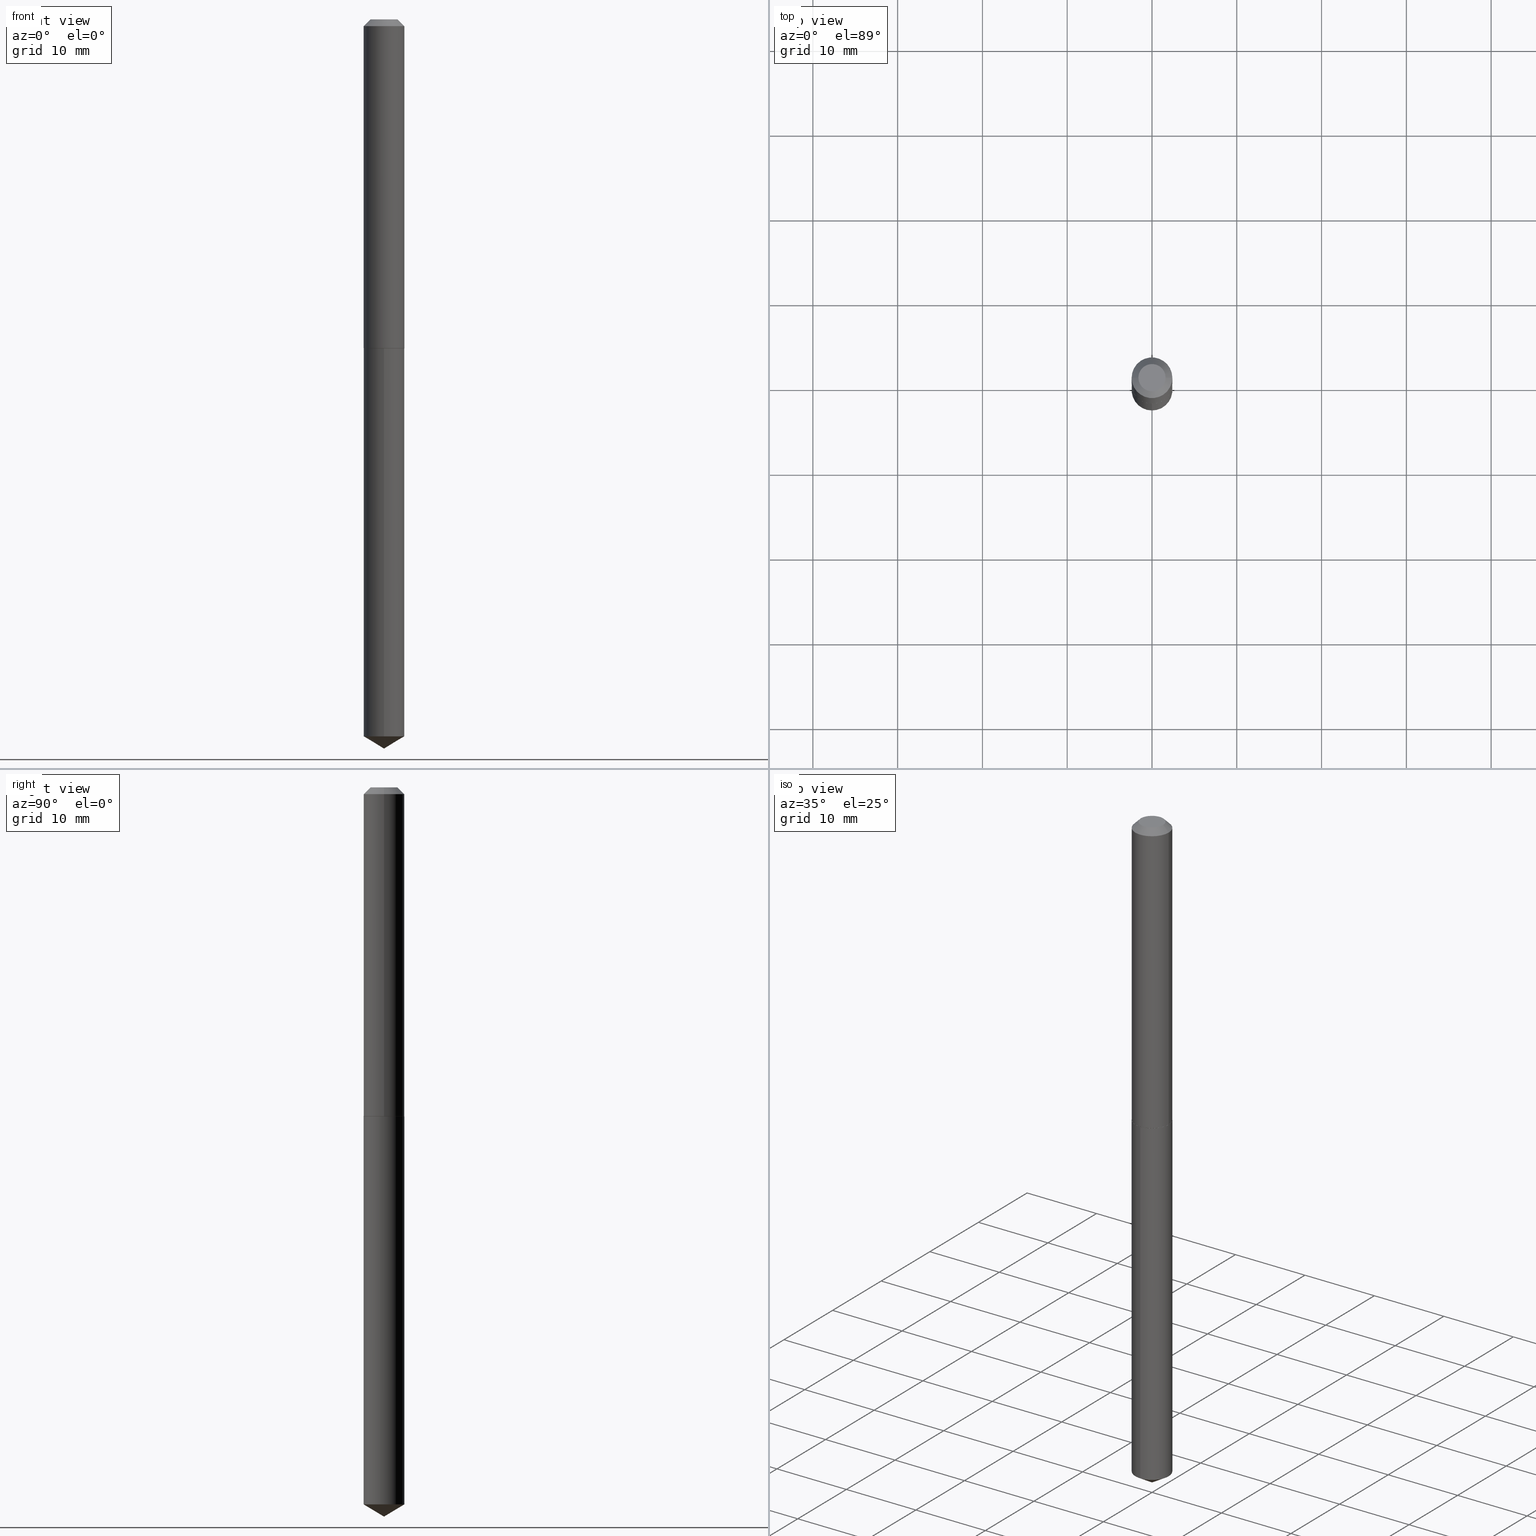
[diagram: canonical four-view strip — front | top / right | iso, engineering-drawing reading convention]
A machine part, canonical four-view strip (front | top / right | iso — engineering-drawing reading convention). The complete STEP part file that produces these views, byte-faithful:
ISO-10303-21;
HEADER;
FILE_DESCRIPTION (( 'STEP AP203' ),
    '1' );
FILE_NAME ('68324.STEP',
    '2024-04-23T13:05:56',
    ( '' ),
    ( '' ),
    'SwSTEP 2.0',
    'SolidWorks 2023',
    '' );
FILE_SCHEMA (( 'CONFIG_CONTROL_DESIGN' ));
ENDSEC;

DATA;
#1 = ORIENTED_EDGE ( 'NONE', *, *, #146, .F. ) ;
#2 = CALENDAR_DATE ( 2024, 23, 4 ) ;
#3 = CARTESIAN_POINT ( 'NONE',  ( -0.09450000000000019496, -4.660378267254071948E-15, -1.527100000000000124 ) ) ;
#4 = CC_DESIGN_APPROVAL ( #16, ( #311 ) ) ;
#5 = EDGE_CURVE ( 'NONE', #169, #362, #150, .T. ) ;
#6 = CARTESIAN_POINT ( 'NONE',  ( -6.598899730412707621E-16, -0.09450000000001163025, -3.329018671501895899 ) ) ;
#7 = DIRECTION ( 'NONE',  ( -5.985567269335961790E-15, -0.8571673007021131108, 0.5150380749100526012 ) ) ;
#8 = DIRECTION ( 'NONE',  ( 1.000000000000000000, -6.982962677686267499E-15, 4.876160269169049654E-29 ) ) ;
#9 = CARTESIAN_POINT ( 'NONE',  ( -2.994835545909309644E-48, 4.275831445896949513E-34, 1.224646799147346403E-19 ) ) ;
#10 = VECTOR ( 'NONE', #284, 39.37007874015748143 ) ;
#11 = DESIGN_CONTEXT ( 'detailed design', #35, 'design' ) ;
#12 = DIRECTION ( 'NONE',  ( 1.000000000000000000, -6.982962677686267499E-15, 4.876160269169049654E-29 ) ) ;
#13 = EDGE_LOOP ( 'NONE', ( #291, #372, #292, #43 ) ) ;
#14 = ORIENTED_EDGE ( 'NONE', *, *, #132, .T. ) ;
#15 = CLOSED_SHELL ( 'NONE', ( #154, #368, #82, #331, #274, #234, #191, #175 ) ) ;
#16 = APPROVAL ( #383, 'UNSPECIFIED' ) ;
#17 = EDGE_CURVE ( 'NONE', #205, #374, #71, .T. ) ;
#18 = MANIFOLD_SOLID_BREP ( 'Body-Move/Copy2[1]', #242 ) ;
#19 = VECTOR ( 'NONE', #41, 39.37007874015748143 ) ;
#20 = VERTEX_POINT ( 'NONE', #366 ) ;
#21 = DIRECTION ( 'NONE',  ( 1.000000000000000000, -6.982962677686266711E-15, 4.876176775795935793E-29 ) ) ;
#22 = CC_DESIGN_PERSON_AND_ORGANIZATION_ASSIGNMENT ( #220, #354, ( #311 ) ) ;
#23 = VERTEX_POINT ( 'NONE', #6 ) ;
#24 = AXIS2_PLACEMENT_3D ( 'NONE', #327, #61, #21 ) ;
#25 = PRODUCT_RELATED_PRODUCT_CATEGORY ( 'detail', '', ( #197 ) ) ;
#26 = EDGE_LOOP ( 'NONE', ( #261, #356 ) ) ;
#27 = COORDINATED_UNIVERSAL_TIME_OFFSET ( 5, 0, .BEHIND. ) ;
#28 = APPROVAL ( #158, 'UNSPECIFIED' ) ;
#29 = CARTESIAN_POINT ( 'NONE',  ( -0.09450000000000019496, -4.660378267254071948E-15, -1.527100000000000124 ) ) ;
#30 = ADVANCED_FACE ( 'NONE', ( #201 ), #256, .T. ) ;
#31 = EDGE_CURVE ( 'NONE', #362, #20, #269, .T. ) ;
#32 = PERSON ( 'UNSPECIFIED', 'UNSPECIFIED', 'UNSPECIFIED', ('UNSPECIFIED'), ('UNSPECIFIED'), ('UNSPECIFIED') ) ;
#33 = CARTESIAN_POINT ( 'NONE',  ( 6.714628852933318555E-16, 0.09449999999999467160, -1.527600000000000291 ) ) ;
#34 = AXIS2_PLACEMENT_3D ( 'NONE', #120, #271, #380 ) ;
#35 = APPLICATION_CONTEXT ( 'configuration controlled 3d designs of mechanical parts and assemblies' ) ;
#36 = LINE ( 'NONE', #33, #173 ) ;
#37 = CARTESIAN_POINT ( 'NONE',  ( -8.799765488636615236E-28, 1.256395493983816557E-13, 35.98427874015747818 ) ) ;
#38 = VERTEX_POINT ( 'NONE', #244 ) ;
#39 = CONICAL_SURFACE ( 'NONE', #364, 0.09449999999999998679, 0.7853981633974449483 ) ;
#40 = DIRECTION ( 'NONE',  ( 1.000000000000000000, -6.982962677686272233E-15, 0.000000000000000000 ) ) ;
#41 = DIRECTION ( 'NONE',  ( -0.7071067811865451302, 2.468850131082231817E-15, -0.7071067811865499042 ) ) ;
#42 = DIRECTION ( 'NONE',  ( 6.982962677686265922E-15, 1.000000000000000000, -3.491510974399375143E-15 ) ) ;
#43 = ORIENTED_EDGE ( 'NONE', *, *, #313, .T. ) ;
#44 = VERTEX_POINT ( 'NONE', #348 ) ;
#45 = DIRECTION ( 'NONE',  ( -6.982962677686267499E-15, -1.000000000000000000, 3.468864327941553588E-15 ) ) ;
#46 = CC_DESIGN_PERSON_AND_ORGANIZATION_ASSIGNMENT ( #210, #246, ( #197 ) ) ;
#47 = AXIS2_PLACEMENT_3D ( 'NONE', #170, #111, #8 ) ;
#48 = CC_DESIGN_SECURITY_CLASSIFICATION ( #68, ( #81 ) ) ;
#49 = ORIENTED_EDGE ( 'NONE', *, *, #146, .T. ) ;
#50 = DIRECTION ( 'NONE',  ( 1.000000000000000000, -6.982962677686266711E-15, 4.876176775795935793E-29 ) ) ;
#51 = DIRECTION ( 'NONE',  ( 1.000000000000000000, 0.000000000000000000, 0.000000000000000000 ) ) ;
#52 = COORDINATED_UNIVERSAL_TIME_OFFSET ( 5, 0, .BEHIND. ) ;
#53 = FACE_OUTER_BOUND ( 'NONE', #157, .T. ) ;
#54 = APPLICATION_CONTEXT ( 'configuration controlled 3d designs of mechanical parts and assemblies' ) ;
#55 = EDGE_CURVE ( 'NONE', #362, #169, #207, .T. ) ;
#56 = PERSON_AND_ORGANIZATION_ROLE ( 'design_supplier' ) ;
#57 = AXIS2_PLACEMENT_3D ( 'NONE', #126, #326, #159 ) ;
#58 = APPROVAL_PERSON_ORGANIZATION ( #275, #16, #86 ) ;
#59 = ORIENTED_EDGE ( 'NONE', *, *, #184, .F. ) ;
#60 = LINE ( 'NONE', #189, #128 ) ;
#61 = DIRECTION ( 'NONE',  ( -2.445468806185136597E-29, 3.491481338843145583E-15, 1.000000000000000000 ) ) ;
#62 = COORDINATED_UNIVERSAL_TIME_OFFSET ( 5, 0, .BEHIND. ) ;
#63 = CC_DESIGN_DATE_AND_TIME_ASSIGNMENT ( #276, #121, ( #68 ) ) ;
#64 = CALENDAR_DATE ( 2024, 23, 4 ) ;
#65 = DIRECTION ( 'NONE',  ( -2.445448111786828198E-29, 3.491510974399375143E-15, 1.000000000000000000 ) ) ;
#66 = DIRECTION ( 'NONE',  ( -1.000000000000000000, 6.982962677686266711E-15, 0.000000000000000000 ) ) ;
#67 = AXIS2_PLACEMENT_3D ( 'NONE', #98, #195, #40 ) ;
#68 = SECURITY_CLASSIFICATION ( '', '', #192 ) ;
#69 = CARTESIAN_POINT ( 'NONE',  ( 8.140974037090264313E-29, -1.162325995425360295E-14, -3.329018671501896343 ) ) ;
#70 = CARTESIAN_POINT ( 'NONE',  ( 3.735698148328414308E-29, -5.333586893216788329E-15, -1.527599999999999847 ) ) ;
#71 = CIRCLE ( 'NONE', #162, 0.09449999999999998679 ) ;
#72 = AXIS2_PLACEMENT_3D ( 'NONE', #233, #304, #190 ) ;
#73 = LINE ( 'NONE', #199, #369 ) ;
#74 = UNCERTAINTY_MEASURE_WITH_UNIT (LENGTH_MEASURE( 1.000000000000000082E-05 ), #214, 'distance_accuracy_value', 'NONE');
#75 = DATE_AND_TIME ( #229, #84 ) ;
#76 = ORIENTED_EDGE ( 'NONE', *, *, #5, .F. ) ;
#77 = EDGE_LOOP ( 'NONE', ( #161, #203, #93, #106 ) ) ;
#78 = ORIENTED_EDGE ( 'NONE', *, *, #313, .F. ) ;
#79 = AXIS2_PLACEMENT_3D ( 'NONE', #281, #65, #307 ) ;
#80 = CARTESIAN_POINT ( 'NONE',  ( 8.279861996826784856E-29, -1.182146731457001290E-14, -3.385800000000000143 ) ) ;
#81 = PRODUCT_DEFINITION_FORMATION_WITH_SPECIFIED_SOURCE ( 'ANY', '', #197, .NOT_KNOWN. ) ;
#82 = ADVANCED_FACE ( 'NONE', ( #352 ), #337, .T. ) ;
#83 = CARTESIAN_POINT ( 'NONE',  ( 7.642090019328603538E-31, -1.091087918388490390E-16, -0.03125000000000021511 ) ) ;
#84 = LOCAL_TIME ( 9, 5, 56.00000000000000000, #258 ) ;
#85 = CARTESIAN_POINT ( 'NONE',  ( 8.279798216887842784E-29, -1.182155785712140469E-14, -3.385800000000000143 ) ) ;
#86 = APPROVAL_ROLE ( '' ) ;
#87 = CARTESIAN_POINT ( 'NONE',  ( 0.09450000000000009781, -6.598899730413529023E-16, 4.607987053127163864E-30 ) ) ;
#88 = PERSON_AND_ORGANIZATION ( #32, #144 ) ;
#89 = DIRECTION ( 'NONE',  ( 1.000000000000000000, -6.982962677686270655E-15, 0.000000000000000000 ) ) ;
#90 = FACE_OUTER_BOUND ( 'NONE', #77, .T. ) ;
#91 = CIRCLE ( 'NONE', #57, 0.09449999999999998679 ) ;
#92 = EDGE_CURVE ( 'NONE', #169, #270, #118, .T. ) ;
#93 = ORIENTED_EDGE ( 'NONE', *, *, #255, .F. ) ;
#94 = CARTESIAN_POINT ( 'NONE',  ( 7.642090019328603538E-31, -1.091087918388490390E-16, -0.03125000000000021511 ) ) ;
#95 =( NAMED_UNIT ( * ) SI_UNIT ( $, .STERADIAN. ) SOLID_ANGLE_UNIT ( ) );
#96 = ORIENTED_EDGE ( 'NONE', *, *, #167, .T. ) ;
#97 = EDGE_CURVE ( 'NONE', #23, #314, #91, .T. ) ;
#98 = CARTESIAN_POINT ( 'NONE',  ( 3.734475413925322628E-29, -5.331841152547368403E-15, -1.527100000000000124 ) ) ;
#99 = CIRCLE ( 'NONE', #302, 0.09400000000000041656 ) ;
#100 = CARTESIAN_POINT ( 'NONE',  ( 6.714628852933765247E-16, 0.09449999999999468547, -1.527600000000000291 ) ) ;
#101 = DIRECTION ( 'NONE',  ( -6.982962677686265922E-15, -1.000000000000000000, 5.781688875479922944E-15 ) ) ;
#102 = APPROVAL_DATE_TIME ( #75, #178 ) ;
#103 = VECTOR ( 'NONE', #212, 39.37007874015748143 ) ;
#104 = VECTOR ( 'NONE', #285, 39.37007874015748143 ) ;
#105 = EDGE_CURVE ( 'NONE', #147, #20, #60, .T. ) ;
#106 = ORIENTED_EDGE ( 'NONE', *, *, #31, .F. ) ;
#107 = ADVANCED_FACE ( 'NONE', ( #53 ), #183, .T. ) ;
#108 = DIRECTION ( 'NONE',  ( 1.000000000000000000, -6.982962677686272233E-15, 0.000000000000000000 ) ) ;
#109 = AXIS2_PLACEMENT_3D ( 'NONE', #37, #165, #264 ) ;
#110 = CC_DESIGN_APPROVAL ( #28, ( #81 ) ) ;
#111 = DIRECTION ( 'NONE',  ( -2.445468806185136597E-29, 3.491481338843145583E-15, 1.000000000000000000 ) ) ;
#112 = EDGE_CURVE ( 'NONE', #23, #374, #221, .T. ) ;
#113 = EDGE_LOOP ( 'NONE', ( #237, #119, #202, #360 ) ) ;
#114 = ORIENTED_EDGE ( 'NONE', *, *, #97, .F. ) ;
#115 = EDGE_CURVE ( 'NONE', #267, #23, #257, .T. ) ;
#116 = MECHANICAL_CONTEXT ( 'NONE', #54, 'mechanical' ) ;
#117 = CIRCLE ( 'NONE', #382, 0.09400000000000041656 ) ;
#118 = LINE ( 'NONE', #245, #349 ) ;
#119 = ORIENTED_EDGE ( 'NONE', *, *, #105, .T. ) ;
#120 = CARTESIAN_POINT ( 'NONE',  ( 3.734475413925322628E-29, -5.331841152547368403E-15, -1.527100000000000124 ) ) ;
#121 = DATE_TIME_ROLE ( 'classification_date' ) ;
#122 = PLANE ( 'NONE',  #227 ) ;
#123 = DIRECTION ( 'NONE',  ( 0.000000000000000000, 0.000000000000000000, 1.000000000000000000 ) ) ;
#124 = PERSON_AND_ORGANIZATION_ROLE ( 'classification_officer' ) ;
#125 = DIRECTION ( 'NONE',  ( -2.438088387897960049E-29, 3.491481338843145188E-15, 1.000000000000000000 ) ) ;
#126 = CARTESIAN_POINT ( 'NONE',  ( 8.140974037090264313E-29, -1.162325995425360295E-14, -3.329018671501896343 ) ) ;
#127 = CARTESIAN_POINT ( 'NONE',  ( 6.714628852933759331E-16, 0.09449999999998837108, -3.329018671501897231 ) ) ;
#128 = VECTOR ( 'NONE', #155, 39.37007874015748143 ) ;
#129 = EDGE_CURVE ( 'NONE', #38, #362, #73, .T. ) ;
#130 = EDGE_CURVE ( 'NONE', #314, #205, #36, .T. ) ;
#131 = APPROVAL_DATE_TIME ( #390, #28 ) ;
#132 = EDGE_CURVE ( 'NONE', #38, #328, #99, .T. ) ;
#133 = VECTOR ( 'NONE', #7, 39.37007874015748854 ) ;
#134 = DIRECTION ( 'NONE',  ( -2.445448111786828198E-29, 3.491510974399375143E-15, 1.000000000000000000 ) ) ;
#135 = APPROVAL_ROLE ( '' ) ;
#136 = PRODUCT_DEFINITION_SHAPE ( 'NONE', 'NONE',  #311 ) ;
#137 = ADVANCED_FACE ( 'NONE', ( #230 ), #265, .F. ) ;
#138 = CARTESIAN_POINT ( 'NONE',  ( 3.734475413925322628E-29, -5.331841152547368403E-15, -1.527100000000000124 ) ) ;
#139 = EDGE_LOOP ( 'NONE', ( #298, #241, #253, #76 ) ) ;
#140 = EDGE_CURVE ( 'NONE', #147, #44, #251, .T. ) ;
#141 = CARTESIAN_POINT ( 'NONE',  ( -8.799765488636615236E-28, 1.256395493983816557E-13, 35.98427874015747818 ) ) ;
#142 = ORIENTED_EDGE ( 'NONE', *, *, #194, .T. ) ;
#143 = CIRCLE ( 'NONE', #323, 0.09449999999999998679 ) ;
#144 = ORGANIZATION ( 'UNSPECIFIED', 'UNSPECIFIED', '' ) ;
#145 = ORIENTED_EDGE ( 'NONE', *, *, #184, .T. ) ;
#146 = EDGE_CURVE ( 'NONE', #314, #23, #222, .T. ) ;
#147 = VERTEX_POINT ( 'NONE', #198 ) ;
#148 = DIRECTION ( 'NONE',  ( 1.000000000000000000, -6.982962677686266711E-15, 0.000000000000000000 ) ) ;
#149 = APPLICATION_PROTOCOL_DEFINITION ( 'international standard', 'config_control_design', 1994, #35 ) ;
#150 = CIRCLE ( 'NONE', #67, 0.09450000000000019496 ) ;
#151 = CONICAL_SURFACE ( 'NONE', #358, 0.09450000000000019496, 0.7853981633976019339 ) ;
#152 = PERSON_AND_ORGANIZATION ( #32, #144 ) ;
#153 = CARTESIAN_POINT ( 'NONE',  ( -0.09400000000000041656, -4.663027494428181571E-15, -1.527599999999999847 ) ) ;
#154 = ADVANCED_FACE ( 'NONE', ( #308 ), #39, .T. ) ;
#155 = DIRECTION ( 'NONE',  ( 0.7071067811865451302, -7.319954787623248157E-15, -0.7071067811865499042 ) ) ;
#156 = DIRECTION ( 'NONE',  ( 1.000000000000000000, -6.982962677686270655E-15, 0.000000000000000000 ) ) ;
#157 = EDGE_LOOP ( 'NONE', ( #295, #49, #351, #371 ) ) ;
#158 = APPROVAL_STATUS ( 'not_yet_approved' ) ;
#159 = DIRECTION ( 'NONE',  ( -6.982962677686265922E-15, -1.000000000000000000, 5.781688875479922944E-15 ) ) ;
#160 = CALENDAR_DATE ( 2024, 23, 4 ) ;
#161 = ORIENTED_EDGE ( 'NONE', *, *, #55, .T. ) ;
#162 = AXIS2_PLACEMENT_3D ( 'NONE', #260, #336, #342 ) ;
#163 = AXIS2_PLACEMENT_3D ( 'NONE', #179, #300, #148 ) ;
#164 = CARTESIAN_POINT ( 'NONE',  ( 3.735698148328414869E-29, -5.333586893216789907E-15, -1.527600000000000069 ) ) ;
#165 = DIRECTION ( 'NONE',  ( -2.445448111786828198E-29, 3.491510974399375143E-15, 1.000000000000000000 ) ) ;
#166 = EDGE_LOOP ( 'NONE', ( #387, #252, #379, #219 ) ) ;
#167 = EDGE_CURVE ( 'NONE', #328, #169, #193, .T. ) ;
#168 = AXIS2_PLACEMENT_3D ( 'NONE', #176, #299, #50 ) ;
#169 = VERTEX_POINT ( 'NONE', #3 ) ;
#170 = CARTESIAN_POINT ( 'NONE',  ( -5.989671091818619287E-48, 8.551662891793899026E-34, 2.449293598294692806E-19 ) ) ;
#171 = EDGE_LOOP ( 'NONE', ( #142, #211 ) ) ;
#172 = CARTESIAN_POINT ( 'NONE',  ( -5.989671091818619287E-48, 8.551662891793899026E-34, 2.449293598294692806E-19 ) ) ;
#173 = VECTOR ( 'NONE', #254, 39.37007874015748143 ) ;
#174 = ADVANCED_FACE ( 'NONE', ( #288 ), #208, .T. ) ;
#175 = ADVANCED_FACE ( 'NONE', ( #259 ), #231, .F. ) ;
#176 = CARTESIAN_POINT ( 'NONE',  ( 0.000000000000000000, 0.000000000000000000, 0.000000000000000000 ) ) ;
#177 = EDGE_LOOP ( 'NONE', ( #293, #329, #263, #78 ) ) ;
#178 = APPROVAL ( #367, 'UNSPECIFIED' ) ;
#179 = CARTESIAN_POINT ( 'NONE',  ( 7.642090019328603538E-31, -1.091087918388490390E-16, -0.03125000000000021511 ) ) ;
#180 = EDGE_CURVE ( 'NONE', #44, #270, #343, .T. ) ;
#181 = CARTESIAN_POINT ( 'NONE',  ( 3.734475413925322628E-29, -5.331841152547368403E-15, -1.527100000000000124 ) ) ;
#182 = PERSON_AND_ORGANIZATION ( #32, #144 ) ;
#183 = CYLINDRICAL_SURFACE ( 'NONE', #79, 0.09449999999999998679 ) ;
#184 = EDGE_CURVE ( 'NONE', #267, #314, #345, .T. ) ;
#185 = CONICAL_SURFACE ( 'NONE', #389, 0.09449999999999998679, 0.7853981633974449483 ) ;
#186 = ADVANCED_FACE ( 'NONE', ( #294 ), #297, .T. ) ;
#187 = APPLICATION_PROTOCOL_DEFINITION ( 'international standard', 'config_control_design', 1994, #54 ) ;
#188 = DATE_AND_TIME ( #64, #286 ) ;
#189 = CARTESIAN_POINT ( 'NONE',  ( 0.09449999999999998679, -7.574258526282587457E-16, -0.03125000000000021511 ) ) ;
#190 = DIRECTION ( 'NONE',  ( 1.000000000000000000, -6.982962677686266711E-15, 0.000000000000000000 ) ) ;
#191 = ADVANCED_FACE ( 'NONE', ( #347 ), #185, .T. ) ;
#192 = SECURITY_CLASSIFICATION_LEVEL ( 'unclassified' ) ;
#193 = LINE ( 'NONE', #29, #10 ) ;
#194 = EDGE_CURVE ( 'NONE', #44, #147, #333, .T. ) ;
#195 = DIRECTION ( 'NONE',  ( -2.445468806185136597E-29, 3.491481338843145583E-15, 1.000000000000000000 ) ) ;
#196 = AXIS2_PLACEMENT_3D ( 'NONE', #346, #344, #42 ) ;
#197 = PRODUCT ( '68324', '68324', '', ( #116 ) ) ;
#198 = CARTESIAN_POINT ( 'NONE',  ( 0.06324999999999998679, -5.956761754936540147E-16, 2.449293598330958067E-19 ) ) ;
#199 = CARTESIAN_POINT ( 'NONE',  ( 0.09450000000000019496, -5.991731125588721996E-15, -1.527100000000000124 ) ) ;
#200 = ORIENTED_EDGE ( 'NONE', *, *, #129, .F. ) ;
#201 = FACE_OUTER_BOUND ( 'NONE', #166, .T. ) ;
#202 = ORIENTED_EDGE ( 'NONE', *, *, #255, .T. ) ;
#203 = ORIENTED_EDGE ( 'NONE', *, *, #92, .T. ) ;
#204 = DIRECTION ( 'NONE',  ( 6.090539988449798946E-15, 0.8571673007021168855, 0.5150380749100467170 ) ) ;
#205 = VERTEX_POINT ( 'NONE', #100 ) ;
#206 = DIRECTION ( 'NONE',  ( 2.445468806185136597E-29, -3.491481338843145583E-15, -1.000000000000000000 ) ) ;
#207 = CIRCLE ( 'NONE', #305, 0.09450000000000019496 ) ;
#208 = CONICAL_SURFACE ( 'NONE', #109, 65.52281426576919898, 1.029744258676659641 ) ;
#209 = EDGE_CURVE ( 'NONE', #374, #205, #143, .T. ) ;
#210 = PERSON_AND_ORGANIZATION ( #32, #144 ) ;
#211 = ORIENTED_EDGE ( 'NONE', *, *, #140, .T. ) ;
#212 = DIRECTION ( 'NONE',  ( -2.445468806185136877E-29, 3.491481338843145188E-15, 1.000000000000000000 ) ) ;
#213 = DATE_TIME_ROLE ( 'creation_date' ) ;
#214 =( CONVERSION_BASED_UNIT ( 'INCH', #361 ) LENGTH_UNIT ( ) NAMED_UNIT ( #240 ) );
#215 =( GEOMETRIC_REPRESENTATION_CONTEXT ( 3 ) GLOBAL_UNCERTAINTY_ASSIGNED_CONTEXT ( ( #74 ) ) GLOBAL_UNIT_ASSIGNED_CONTEXT ( ( #214, #334, #95 ) ) REPRESENTATION_CONTEXT ( 'NONE', 'WORKASPACE' ) );
#216 = APPROVAL_ROLE ( '' ) ;
#217 = CYLINDRICAL_SURFACE ( 'NONE', #24, 0.09450000000000009781 ) ;
#218 = ORIENTED_EDGE ( 'NONE', *, *, #55, .F. ) ;
#219 = ORIENTED_EDGE ( 'NONE', *, *, #112, .F. ) ;
#220 = PERSON_AND_ORGANIZATION ( #32, #144 ) ;
#221 = LINE ( 'NONE', #335, #104 ) ;
#222 = CIRCLE ( 'NONE', #289, 0.09449999999999998679 ) ;
#223 = CC_DESIGN_APPROVAL ( #178, ( #68 ) ) ;
#224 = CC_DESIGN_PERSON_AND_ORGANIZATION_ASSIGNMENT ( #182, #325, ( #81 ) ) ;
#225 = DIRECTION ( 'NONE',  ( -2.445448111786828198E-29, 3.491510974399375143E-15, 1.000000000000000000 ) ) ;
#226 = DIRECTION ( 'NONE',  ( -2.445448111786828198E-29, 3.491510974399375143E-15, 1.000000000000000000 ) ) ;
#227 = AXIS2_PLACEMENT_3D ( 'NONE', #388, #125, #301 ) ;
#228 = CC_DESIGN_DATE_AND_TIME_ASSIGNMENT ( #283, #213, ( #311 ) ) ;
#229 = CALENDAR_DATE ( 2024, 23, 4 ) ;
#230 = FACE_OUTER_BOUND ( 'NONE', #26, .T. ) ;
#231 = PLANE ( 'NONE',  #310 ) ;
#232 = DIRECTION ( 'NONE',  ( -6.982962677686265922E-15, -1.000000000000000000, 2.890844437739961472E-15 ) ) ;
#233 = CARTESIAN_POINT ( 'NONE',  ( 7.642090019328603538E-31, -1.091087918388490390E-16, -0.03125000000000021511 ) ) ;
#234 = ADVANCED_FACE ( 'NONE', ( #287 ), #239, .T. ) ;
#235 = AXIS2_PLACEMENT_3D ( 'NONE', #172, #312, #12 ) ;
#236 = LOCAL_TIME ( 9, 5, 56.00000000000000000, #62 ) ;
#237 = ORIENTED_EDGE ( 'NONE', *, *, #140, .F. ) ;
#238 = DIRECTION ( 'NONE',  ( 2.438088387897960049E-29, -3.491481338843145188E-15, -1.000000000000000000 ) ) ;
#239 = CYLINDRICAL_SURFACE ( 'NONE', #168, 0.09450000000000009781 ) ;
#240 = DIMENSIONAL_EXPONENTS ( 1.000000000000000000, 0.000000000000000000, 0.000000000000000000, 0.000000000000000000, 0.000000000000000000, 0.000000000000000000, 0.000000000000000000 ) ;
#241 = ORIENTED_EDGE ( 'NONE', *, *, #322, .T. ) ;
#242 = CLOSED_SHELL ( 'NONE', ( #30, #174, #186, #107, #137 ) ) ;
#243 = VECTOR ( 'NONE', #204, 39.37007874015748143 ) ;
#244 = CARTESIAN_POINT ( 'NONE',  ( 0.09400000000000041656, -5.989985384919301281E-15, -1.527599999999999847 ) ) ;
#245 = CARTESIAN_POINT ( 'NONE',  ( -0.09450000000000009781, 6.714628852932953706E-16, -4.648393660290891235E-30 ) ) ;
#246 = PERSON_AND_ORGANIZATION_ROLE ( 'design_owner' ) ;
#247 = COORDINATED_UNIVERSAL_TIME_OFFSET ( 5, 0, .BEHIND. ) ;
#248 = DIRECTION ( 'NONE',  ( -2.445468806185136597E-29, 3.491481338843145583E-15, 1.000000000000000000 ) ) ;
#249 = ORIENTED_EDGE ( 'NONE', *, *, #132, .F. ) ;
#250 = FACE_OUTER_BOUND ( 'NONE', #378, .T. ) ;
#251 = CIRCLE ( 'NONE', #47, 0.06324999999999998679 ) ;
#252 = ORIENTED_EDGE ( 'NONE', *, *, #130, .T. ) ;
#253 = ORIENTED_EDGE ( 'NONE', *, *, #129, .T. ) ;
#254 = DIRECTION ( 'NONE',  ( -2.445448111786828198E-29, 3.491510974399375143E-15, 1.000000000000000000 ) ) ;
#255 = EDGE_CURVE ( 'NONE', #20, #270, #273, .T. ) ;
#256 = CYLINDRICAL_SURFACE ( 'NONE', #282, 0.09449999999999998679 ) ;
#257 = LINE ( 'NONE', #330, #133 ) ;
#258 = COORDINATED_UNIVERSAL_TIME_OFFSET ( 5, 0, .BEHIND. ) ;
#259 = FACE_OUTER_BOUND ( 'NONE', #171, .T. ) ;
#260 = CARTESIAN_POINT ( 'NONE',  ( 3.735698148328414869E-29, -5.333586893216789907E-15, -1.527600000000000069 ) ) ;
#261 = ORIENTED_EDGE ( 'NONE', *, *, #209, .T. ) ;
#262 = CC_DESIGN_PERSON_AND_ORGANIZATION_ASSIGNMENT ( #321, #56, ( #81 ) ) ;
#263 = ORIENTED_EDGE ( 'NONE', *, *, #31, .T. ) ;
#264 = DIRECTION ( 'NONE',  ( -6.982962677686267499E-15, -1.000000000000000000, 3.468864327941553588E-15 ) ) ;
#265 = PLANE ( 'NONE',  #196 ) ;
#266 = AXIS2_PLACEMENT_3D ( 'NONE', #278, #123, #51 ) ;
#267 = VERTEX_POINT ( 'NONE', #85 ) ;
#268 = ORIENTED_EDGE ( 'NONE', *, *, #115, .F. ) ;
#269 = LINE ( 'NONE', #87, #103 ) ;
#270 = VERTEX_POINT ( 'NONE', #272 ) ;
#271 = DIRECTION ( 'NONE',  ( -2.445468806185136597E-29, 3.491481338843145583E-15, 1.000000000000000000 ) ) ;
#272 = CARTESIAN_POINT ( 'NONE',  ( -0.09449999999999998679, -2.049012086899812691E-15, -0.03125000000000021511 ) ) ;
#273 = CIRCLE ( 'NONE', #163, 0.09449999999999998679 ) ;
#274 = ADVANCED_FACE ( 'NONE', ( #381 ), #151, .T. ) ;
#275 = PERSON_AND_ORGANIZATION ( #32, #144 ) ;
#276 = DATE_AND_TIME ( #2, #324 ) ;
#277 =( LENGTH_UNIT ( ) NAMED_UNIT ( * ) SI_UNIT ( $, .METRE. ) );
#278 = CARTESIAN_POINT ( 'NONE',  ( 0.000000000000000000, 0.000000000000000000, 0.000000000000000000 ) ) ;
#279 = CALENDAR_DATE ( 2024, 23, 4 ) ;
#280 = CARTESIAN_POINT ( 'NONE',  ( 3.735698148328414308E-29, -5.333586893216788329E-15, -1.527599999999999847 ) ) ;
#281 = CARTESIAN_POINT ( 'NONE',  ( 3.735698148328414869E-29, -5.333586893216789907E-15, -1.527600000000000069 ) ) ;
#282 = AXIS2_PLACEMENT_3D ( 'NONE', #164, #226, #338 ) ;
#283 = DATE_AND_TIME ( #160, #236 ) ;
#284 = DIRECTION ( 'NONE',  ( -0.7071067811866561525, 7.493145998870747013E-15, 0.7071067811864388819 ) ) ;
#285 = DIRECTION ( 'NONE',  ( -2.445448111786828198E-29, 3.491510974399375143E-15, 1.000000000000000000 ) ) ;
#286 = LOCAL_TIME ( 9, 5, 56.00000000000000000, #247 ) ;
#287 = FACE_OUTER_BOUND ( 'NONE', #177, .T. ) ;
#288 = FACE_OUTER_BOUND ( 'NONE', #363, .T. ) ;
#289 = AXIS2_PLACEMENT_3D ( 'NONE', #69, #134, #101 ) ;
#290 = ORIENTED_EDGE ( 'NONE', *, *, #322, .F. ) ;
#291 = ORIENTED_EDGE ( 'NONE', *, *, #105, .F. ) ;
#292 = ORIENTED_EDGE ( 'NONE', *, *, #180, .T. ) ;
#293 = ORIENTED_EDGE ( 'NONE', *, *, #92, .F. ) ;
#294 = FACE_OUTER_BOUND ( 'NONE', #306, .T. ) ;
#295 = ORIENTED_EDGE ( 'NONE', *, *, #130, .F. ) ;
#296 = MANIFOLD_SOLID_BREP ( 'Body-Move/Copy2[2]', #15 ) ;
#297 = CONICAL_SURFACE ( 'NONE', #319, 65.52281426576919898, 1.029744258676659641 ) ;
#298 = ORIENTED_EDGE ( 'NONE', *, *, #167, .F. ) ;
#299 = DIRECTION ( 'NONE',  ( -2.445468806185136597E-29, 3.491481338843145583E-15, 1.000000000000000000 ) ) ;
#300 = DIRECTION ( 'NONE',  ( -2.445468806185136597E-29, 3.491481338843145583E-15, 1.000000000000000000 ) ) ;
#301 = DIRECTION ( 'NONE',  ( 1.000000000000000000, -6.982962677686265922E-15, 4.876176775795935793E-29 ) ) ;
#302 = AXIS2_PLACEMENT_3D ( 'NONE', #70, #309, #156 ) ;
#303 = PERSON_AND_ORGANIZATION ( #32, #144 ) ;
#304 = DIRECTION ( 'NONE',  ( -2.445468806185136597E-29, 3.491481338843145583E-15, 1.000000000000000000 ) ) ;
#305 = AXIS2_PLACEMENT_3D ( 'NONE', #181, #320, #385 ) ;
#306 = EDGE_LOOP ( 'NONE', ( #59, #317, #1 ) ) ;
#307 = DIRECTION ( 'NONE',  ( -6.982962677686265922E-15, -1.000000000000000000, 2.890844437739961472E-15 ) ) ;
#308 = FACE_OUTER_BOUND ( 'NONE', #113, .T. ) ;
#309 = DIRECTION ( 'NONE',  ( -2.445468806185136597E-29, 3.491481338843145583E-15, 1.000000000000000000 ) ) ;
#310 = AXIS2_PLACEMENT_3D ( 'NONE', #9, #238, #340 ) ;
#311 = PRODUCT_DEFINITION ( 'UNKNOWN', '', #81, #11 ) ;
#312 = DIRECTION ( 'NONE',  ( -2.445468806185136597E-29, 3.491481338843145583E-15, 1.000000000000000000 ) ) ;
#313 = EDGE_CURVE ( 'NONE', #270, #20, #376, .T. ) ;
#314 = VERTEX_POINT ( 'NONE', #127 ) ;
#315 = DIRECTION ( 'NONE',  ( 0.7071067811866561525, -2.468850131083394598E-15, 0.7071067811864388819 ) ) ;
#316 = CARTESIAN_POINT ( 'NONE',  ( -0.09449999999999998679, 5.507811812025031114E-16, -0.03125000000000021511 ) ) ;
#317 = ORIENTED_EDGE ( 'NONE', *, *, #115, .T. ) ;
#318 = DIRECTION ( 'NONE',  ( -1.000000000000000000, 6.982962677686266711E-15, 0.000000000000000000 ) ) ;
#319 = AXIS2_PLACEMENT_3D ( 'NONE', #141, #375, #45 ) ;
#320 = DIRECTION ( 'NONE',  ( -2.445468806185136597E-29, 3.491481338843145583E-15, 1.000000000000000000 ) ) ;
#321 = PERSON_AND_ORGANIZATION ( #32, #144 ) ;
#322 = EDGE_CURVE ( 'NONE', #328, #38, #117, .T. ) ;
#323 = AXIS2_PLACEMENT_3D ( 'NONE', #370, #225, #232 ) ;
#324 = LOCAL_TIME ( 9, 5, 56.00000000000000000, #27 ) ;
#325 = PERSON_AND_ORGANIZATION_ROLE ( 'creator' ) ;
#326 = DIRECTION ( 'NONE',  ( -2.445448111786828198E-29, 3.491510974399375143E-15, 1.000000000000000000 ) ) ;
#327 = CARTESIAN_POINT ( 'NONE',  ( 0.000000000000000000, 0.000000000000000000, 0.000000000000000000 ) ) ;
#328 = VERTEX_POINT ( 'NONE', #153 ) ;
#329 = ORIENTED_EDGE ( 'NONE', *, *, #5, .T. ) ;
#330 = CARTESIAN_POINT ( 'NONE',  ( 8.279798216887842784E-29, -1.182155785712140627E-14, -3.385800000000000143 ) ) ;
#331 = ADVANCED_FACE ( 'NONE', ( #250 ), #122, .F. ) ;
#332 = DIRECTION ( 'NONE',  ( 2.445468806185136597E-29, -3.491481338843145583E-15, -1.000000000000000000 ) ) ;
#333 = CIRCLE ( 'NONE', #235, 0.06324999999999998679 ) ;
#334 =( NAMED_UNIT ( * ) PLANE_ANGLE_UNIT ( ) SI_UNIT ( $, .RADIAN. ) );
#335 = CARTESIAN_POINT ( 'NONE',  ( -6.598899730413146425E-16, -0.09450000000000531586, -1.527599999999999847 ) ) ;
#336 = DIRECTION ( 'NONE',  ( -2.445448111786828198E-29, 3.491510974399375143E-15, 1.000000000000000000 ) ) ;
#337 = CONICAL_SURFACE ( 'NONE', #34, 0.09450000000000019496, 0.7853981633976019339 ) ;
#338 = DIRECTION ( 'NONE',  ( -6.982962677686265922E-15, -1.000000000000000000, 2.890844437739961472E-15 ) ) ;
#339 = SHAPE_DEFINITION_REPRESENTATION ( #136, #384 ) ;
#340 = DIRECTION ( 'NONE',  ( -1.000000000000000000, 6.982962677686265922E-15, -4.876176775795935793E-29 ) ) ;
#341 = EDGE_LOOP ( 'NONE', ( #14, #96, #218, #200 ) ) ;
#342 = DIRECTION ( 'NONE',  ( -6.982962677686265922E-15, -1.000000000000000000, 2.890844437739961472E-15 ) ) ;
#343 = LINE ( 'NONE', #316, #19 ) ;
#344 = DIRECTION ( 'NONE',  ( 2.445448111786827918E-29, -3.491510974399375143E-15, -1.000000000000000000 ) ) ;
#345 = LINE ( 'NONE', #80, #243 ) ;
#346 = CARTESIAN_POINT ( 'NONE',  ( 3.735698148328414869E-29, -5.333586893216789907E-15, -1.527600000000000069 ) ) ;
#347 = FACE_OUTER_BOUND ( 'NONE', #13, .T. ) ;
#348 = CARTESIAN_POINT ( 'NONE',  ( -0.06324999999999998679, 4.962267852830796458E-16, 2.449293598261899515E-19 ) ) ;
#349 = VECTOR ( 'NONE', #353, 39.37007874015748143 ) ;
#350 = APPROVAL_PERSON_ORGANIZATION ( #303, #178, #135 ) ;
#351 = ORIENTED_EDGE ( 'NONE', *, *, #112, .T. ) ;
#352 = FACE_OUTER_BOUND ( 'NONE', #341, .T. ) ;
#353 = DIRECTION ( 'NONE',  ( -2.445468806185136877E-29, 3.491481338843145188E-15, 1.000000000000000000 ) ) ;
#354 = PERSON_AND_ORGANIZATION_ROLE ( 'creator' ) ;
#355 = CARTESIAN_POINT ( 'NONE',  ( -6.598899730413146425E-16, -0.09450000000000531586, -1.527599999999999847 ) ) ;
#356 = ORIENTED_EDGE ( 'NONE', *, *, #17, .T. ) ;
#357 = CARTESIAN_POINT ( 'NONE',  ( 0.09450000000000019496, -5.991731125588721996E-15, -1.527100000000000124 ) ) ;
#358 = AXIS2_PLACEMENT_3D ( 'NONE', #138, #373, #108 ) ;
#359 = LOCAL_TIME ( 9, 5, 56.00000000000000000, #52 ) ;
#360 = ORIENTED_EDGE ( 'NONE', *, *, #180, .F. ) ;
#361 = LENGTH_MEASURE_WITH_UNIT ( LENGTH_MEASURE( 0.02539999999999999897 ), #277 );
#362 = VERTEX_POINT ( 'NONE', #357 ) ;
#363 = EDGE_LOOP ( 'NONE', ( #268, #145, #114 ) ) ;
#364 = AXIS2_PLACEMENT_3D ( 'NONE', #94, #332, #66 ) ;
#365 = CC_DESIGN_PERSON_AND_ORGANIZATION_ASSIGNMENT ( #88, #124, ( #68 ) ) ;
#366 = CARTESIAN_POINT ( 'NONE',  ( 0.09449999999999998679, -7.689987648802012141E-16, -0.03125000000000021511 ) ) ;
#367 = APPROVAL_STATUS ( 'not_yet_approved' ) ;
#368 = ADVANCED_FACE ( 'NONE', ( #90 ), #217, .T. ) ;
#369 = VECTOR ( 'NONE', #315, 39.37007874015748143 ) ;
#370 = CARTESIAN_POINT ( 'NONE',  ( 3.735698148328414869E-29, -5.333586893216789907E-15, -1.527600000000000069 ) ) ;
#371 = ORIENTED_EDGE ( 'NONE', *, *, #17, .F. ) ;
#372 = ORIENTED_EDGE ( 'NONE', *, *, #194, .F. ) ;
#373 = DIRECTION ( 'NONE',  ( -2.445468806185136597E-29, 3.491481338843145583E-15, 1.000000000000000000 ) ) ;
#374 = VERTEX_POINT ( 'NONE', #355 ) ;
#375 = DIRECTION ( 'NONE',  ( -2.445448111786828198E-29, 3.491510974399375143E-15, 1.000000000000000000 ) ) ;
#376 = CIRCLE ( 'NONE', #72, 0.09449999999999998679 ) ;
#377 = APPROVAL_PERSON_ORGANIZATION ( #152, #28, #216 ) ;
#378 = EDGE_LOOP ( 'NONE', ( #249, #290 ) ) ;
#379 = ORIENTED_EDGE ( 'NONE', *, *, #209, .F. ) ;
#380 = DIRECTION ( 'NONE',  ( 1.000000000000000000, -6.982962677686272233E-15, 0.000000000000000000 ) ) ;
#381 = FACE_OUTER_BOUND ( 'NONE', #139, .T. ) ;
#382 = AXIS2_PLACEMENT_3D ( 'NONE', #280, #248, #89 ) ;
#383 = APPROVAL_STATUS ( 'not_yet_approved' ) ;
#384 = ADVANCED_BREP_SHAPE_REPRESENTATION ( '68324', ( #18, #296, #266 ), #215 ) ;
#385 = DIRECTION ( 'NONE',  ( 1.000000000000000000, -6.982962677686272233E-15, 0.000000000000000000 ) ) ;
#386 = APPROVAL_DATE_TIME ( #188, #16 ) ;
#387 = ORIENTED_EDGE ( 'NONE', *, *, #97, .T. ) ;
#388 = CARTESIAN_POINT ( 'NONE',  ( 6.835814883066333057E-29, -8.940432813853829572E-16, -1.527599999999999847 ) ) ;
#389 = AXIS2_PLACEMENT_3D ( 'NONE', #83, #206, #318 ) ;
#390 = DATE_AND_TIME ( #279, #359 ) ;
ENDSEC;
END-ISO-10303-21;
